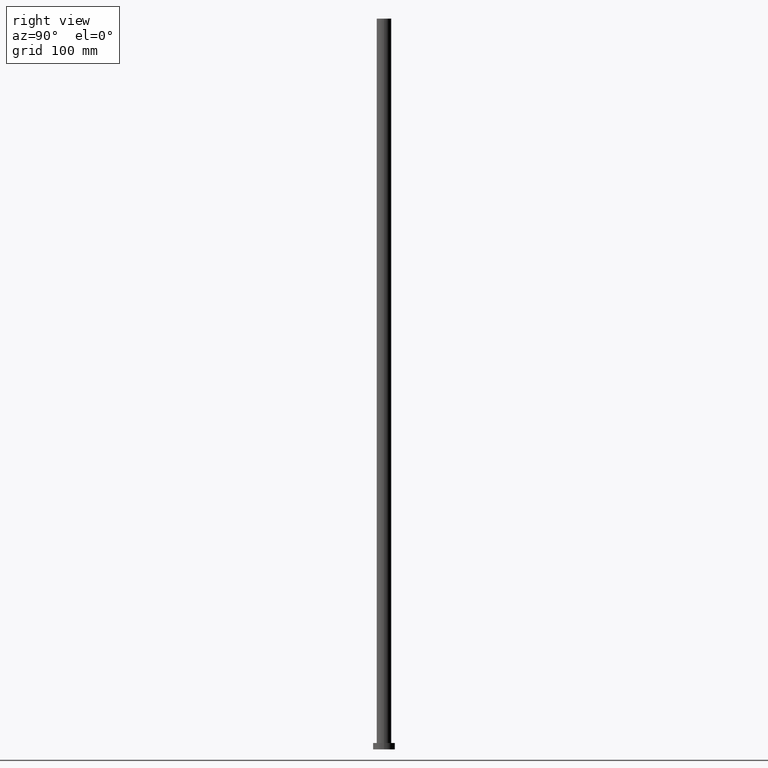
[diagram: clean part render]
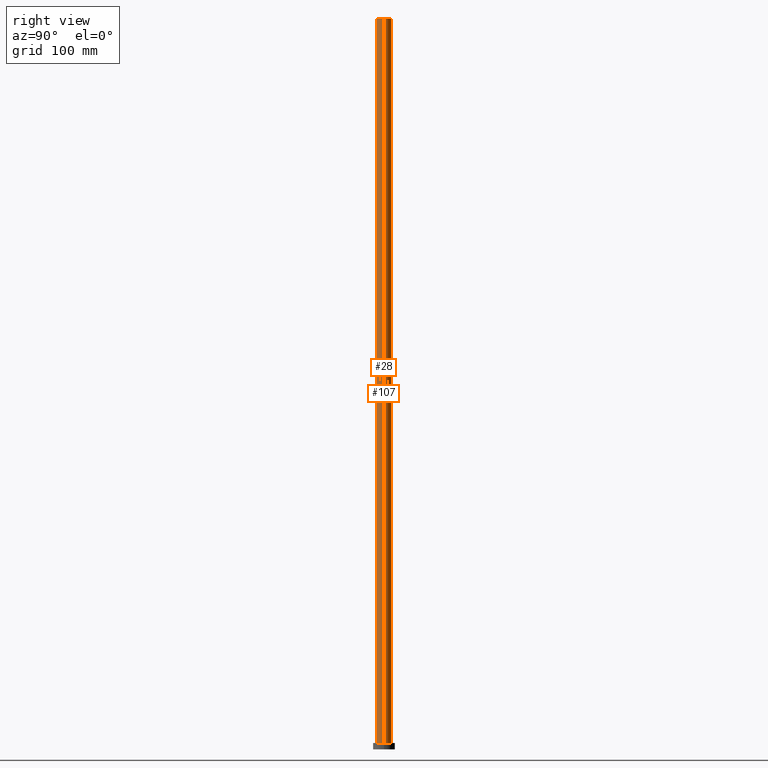
[diagram: same view with one multi-face feature highlighted, each face labeled with its STEP entity id]
A machine part, right view. The highlighted faces form ONE feature: a constant-radius fillet chain: 2 tangent blend faces with common blend radius 8 mm. The faces share edges in the B-rep.
Their STEP definitions:
[1] entity #107 (Cylinder):
#4 = DIRECTION ( 'NONE',  ( 1.000000000000000000, 0.000000000000000000, 0.000000000000000000 ) ) ;
#7 = DIRECTION ( 'NONE',  ( 1.000000000000000000, 0.000000000000000000, 0.000000000000000000 ) ) ;
#8 = EDGE_CURVE ( 'NONE', #85, #128, #49, .T. ) ;
#10 = DIRECTION ( 'NONE',  ( -0.000000000000000000, -0.000000000000000000, -1.000000000000000000 ) ) ;
#27 = DIRECTION ( 'NONE',  ( 0.000000000000000000, 0.000000000000000000, 1.000000000000000000 ) ) ;
#33 = VERTEX_POINT ( 'NONE', #134 ) ;
#34 = AXIS2_PLACEMENT_3D ( 'NONE', #149, #240, #87 ) ;
#43 = ORIENTED_EDGE ( 'NONE', *, *, #8, .T. ) ;
#49 = LINE ( 'NONE', #151, #233 ) ;
#59 = EDGE_CURVE ( 'NONE', #85, #237, #152, .T. ) ;
#62 = CIRCLE ( 'NONE', #138, 8.000000000000000000 ) ;
#69 = CARTESIAN_POINT ( 'NONE',  ( -8.000000000000000000, 0.000000000000000000, 800.0000000000000000 ) ) ;
#71 = FACE_OUTER_BOUND ( 'NONE', #145, .T. ) ;
#75 = AXIS2_PLACEMENT_3D ( 'NONE', #136, #27, #7 ) ;
#85 = VERTEX_POINT ( 'NONE', #216 ) ;
#87 = DIRECTION ( 'NONE',  ( -1.000000000000000000, 0.000000000000000000, 0.000000000000000000 ) ) ;
#107 = ADVANCED_FACE ( 'NONE', ( #71 ), #185, .T. ) ;
#111 = VECTOR ( 'NONE', #207, 1000.000000000000000 ) ;
#128 = VERTEX_POINT ( 'NONE', #130 ) ;
#130 = CARTESIAN_POINT ( 'NONE',  ( 8.000000000000000000, 9.797174393178825657E-16, 7.000000000000000000 ) ) ;
#132 = ORIENTED_EDGE ( 'NONE', *, *, #191, .F. ) ;
#134 = CARTESIAN_POINT ( 'NONE',  ( -8.000000000000000000, 0.000000000000000000, 7.000000000000000000 ) ) ;
#136 = CARTESIAN_POINT ( 'NONE',  ( 0.000000000000000000, 0.000000000000000000, 800.0000000000000000 ) ) ;
#138 = AXIS2_PLACEMENT_3D ( 'NONE', #164, #241, #4 ) ;
#143 = LINE ( 'NONE', #69, #111 ) ;
#145 = EDGE_LOOP ( 'NONE', ( #162, #43, #201, #132 ) ) ;
#147 = CARTESIAN_POINT ( 'NONE',  ( -8.000000000000000000, 0.000000000000000000, 800.0000000000000000 ) ) ;
#149 = CARTESIAN_POINT ( 'NONE',  ( 0.000000000000000000, 0.000000000000000000, 800.0000000000000000 ) ) ;
#151 = CARTESIAN_POINT ( 'NONE',  ( 8.000000000000000000, 9.797174393178825657E-16, 800.0000000000000000 ) ) ;
#152 = CIRCLE ( 'NONE', #75, 8.000000000000000000 ) ;
#162 = ORIENTED_EDGE ( 'NONE', *, *, #59, .F. ) ;
#164 = CARTESIAN_POINT ( 'NONE',  ( 0.000000000000000000, 0.000000000000000000, 7.000000000000000000 ) ) ;
#179 = EDGE_CURVE ( 'NONE', #128, #33, #62, .T. ) ;
#185 = CYLINDRICAL_SURFACE ( 'NONE', #34, 8.000000000000000000 ) ;
#191 = EDGE_CURVE ( 'NONE', #237, #33, #143, .T. ) ;
#201 = ORIENTED_EDGE ( 'NONE', *, *, #179, .T. ) ;
#207 = DIRECTION ( 'NONE',  ( -0.000000000000000000, -0.000000000000000000, -1.000000000000000000 ) ) ;
#216 = CARTESIAN_POINT ( 'NONE',  ( 8.000000000000000000, 9.797174393178825657E-16, 800.0000000000000000 ) ) ;
#233 = VECTOR ( 'NONE', #10, 1000.000000000000000 ) ;
#237 = VERTEX_POINT ( 'NONE', #147 ) ;
#240 = DIRECTION ( 'NONE',  ( -0.000000000000000000, -0.000000000000000000, -1.000000000000000000 ) ) ;
#241 = DIRECTION ( 'NONE',  ( 0.000000000000000000, 0.000000000000000000, 1.000000000000000000 ) ) ;
[2] entity #28 (Cylinder):
#5 = ORIENTED_EDGE ( 'NONE', *, *, #47, .F. ) ;
#8 = EDGE_CURVE ( 'NONE', #85, #128, #49, .T. ) ;
#10 = DIRECTION ( 'NONE',  ( -0.000000000000000000, -0.000000000000000000, -1.000000000000000000 ) ) ;
#26 = ORIENTED_EDGE ( 'NONE', *, *, #191, .T. ) ;
#28 = ADVANCED_FACE ( 'NONE', ( #226 ), #94, .T. ) ;
#33 = VERTEX_POINT ( 'NONE', #134 ) ;
#47 = EDGE_CURVE ( 'NONE', #237, #85, #194, .T. ) ;
#48 = DIRECTION ( 'NONE',  ( 1.000000000000000000, 0.000000000000000000, 0.000000000000000000 ) ) ;
#49 = LINE ( 'NONE', #151, #233 ) ;
#55 = DIRECTION ( 'NONE',  ( -0.000000000000000000, -0.000000000000000000, -1.000000000000000000 ) ) ;
#69 = CARTESIAN_POINT ( 'NONE',  ( -8.000000000000000000, 0.000000000000000000, 800.0000000000000000 ) ) ;
#79 = DIRECTION ( 'NONE',  ( 1.000000000000000000, 0.000000000000000000, 0.000000000000000000 ) ) ;
#85 = VERTEX_POINT ( 'NONE', #216 ) ;
#94 = CYLINDRICAL_SURFACE ( 'NONE', #144, 8.000000000000000000 ) ;
#98 = CARTESIAN_POINT ( 'NONE',  ( 0.000000000000000000, 0.000000000000000000, 800.0000000000000000 ) ) ;
#106 = ORIENTED_EDGE ( 'NONE', *, *, #8, .F. ) ;
#111 = VECTOR ( 'NONE', #207, 1000.000000000000000 ) ;
#123 = EDGE_CURVE ( 'NONE', #33, #128, #176, .T. ) ;
#128 = VERTEX_POINT ( 'NONE', #130 ) ;
#130 = CARTESIAN_POINT ( 'NONE',  ( 8.000000000000000000, 9.797174393178825657E-16, 7.000000000000000000 ) ) ;
#134 = CARTESIAN_POINT ( 'NONE',  ( -8.000000000000000000, 0.000000000000000000, 7.000000000000000000 ) ) ;
#143 = LINE ( 'NONE', #69, #111 ) ;
#144 = AXIS2_PLACEMENT_3D ( 'NONE', #230, #55, #251 ) ;
#147 = CARTESIAN_POINT ( 'NONE',  ( -8.000000000000000000, 0.000000000000000000, 800.0000000000000000 ) ) ;
#151 = CARTESIAN_POINT ( 'NONE',  ( 8.000000000000000000, 9.797174393178825657E-16, 800.0000000000000000 ) ) ;
#170 = EDGE_LOOP ( 'NONE', ( #106, #5, #26, #178 ) ) ;
#176 = CIRCLE ( 'NONE', #220, 8.000000000000000000 ) ;
#178 = ORIENTED_EDGE ( 'NONE', *, *, #123, .T. ) ;
#181 = AXIS2_PLACEMENT_3D ( 'NONE', #98, #252, #79 ) ;
#191 = EDGE_CURVE ( 'NONE', #237, #33, #143, .T. ) ;
#194 = CIRCLE ( 'NONE', #181, 8.000000000000000000 ) ;
#207 = DIRECTION ( 'NONE',  ( -0.000000000000000000, -0.000000000000000000, -1.000000000000000000 ) ) ;
#216 = CARTESIAN_POINT ( 'NONE',  ( 8.000000000000000000, 9.797174393178825657E-16, 800.0000000000000000 ) ) ;
#220 = AXIS2_PLACEMENT_3D ( 'NONE', #222, #243, #48 ) ;
#222 = CARTESIAN_POINT ( 'NONE',  ( 0.000000000000000000, 0.000000000000000000, 7.000000000000000000 ) ) ;
#226 = FACE_OUTER_BOUND ( 'NONE', #170, .T. ) ;
#230 = CARTESIAN_POINT ( 'NONE',  ( 0.000000000000000000, 0.000000000000000000, 800.0000000000000000 ) ) ;
#233 = VECTOR ( 'NONE', #10, 1000.000000000000000 ) ;
#237 = VERTEX_POINT ( 'NONE', #147 ) ;
#243 = DIRECTION ( 'NONE',  ( 0.000000000000000000, 0.000000000000000000, 1.000000000000000000 ) ) ;
#251 = DIRECTION ( 'NONE',  ( -1.000000000000000000, 0.000000000000000000, 0.000000000000000000 ) ) ;
#252 = DIRECTION ( 'NONE',  ( 0.000000000000000000, 0.000000000000000000, 1.000000000000000000 ) ) ;